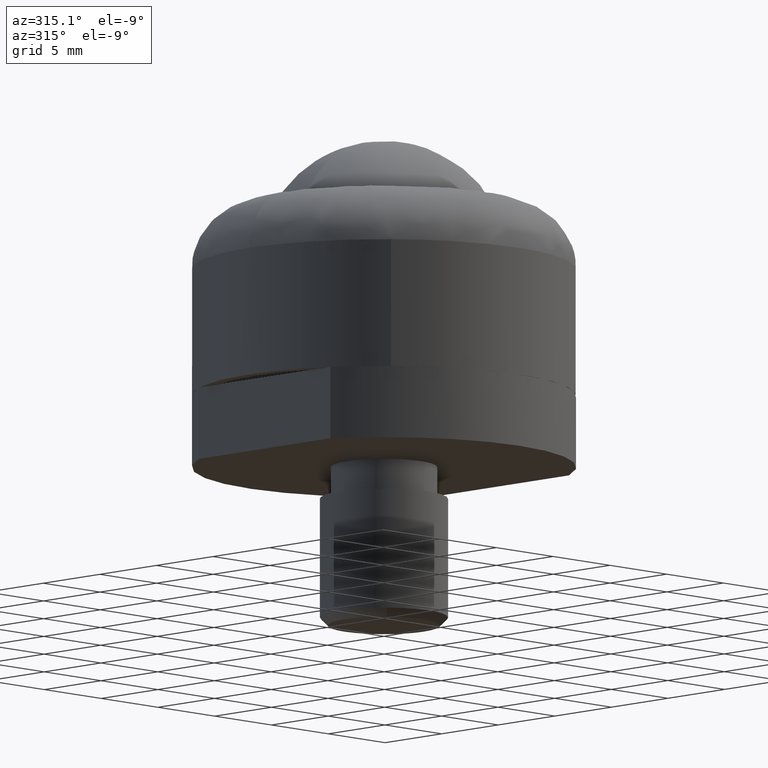
[diagram: clean part render]
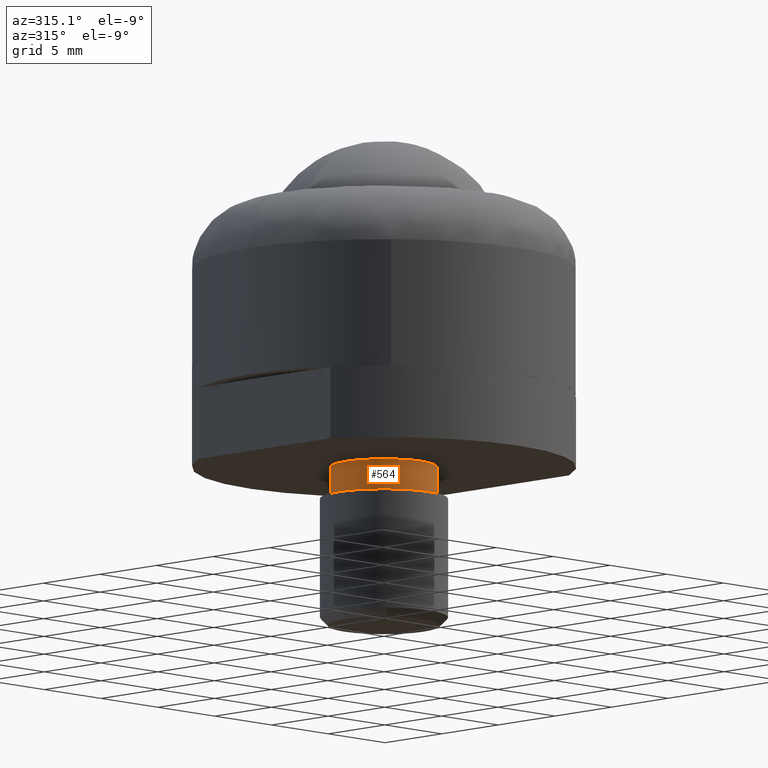
[diagram: same view with one face highlighted and labeled with its STEP entity id]
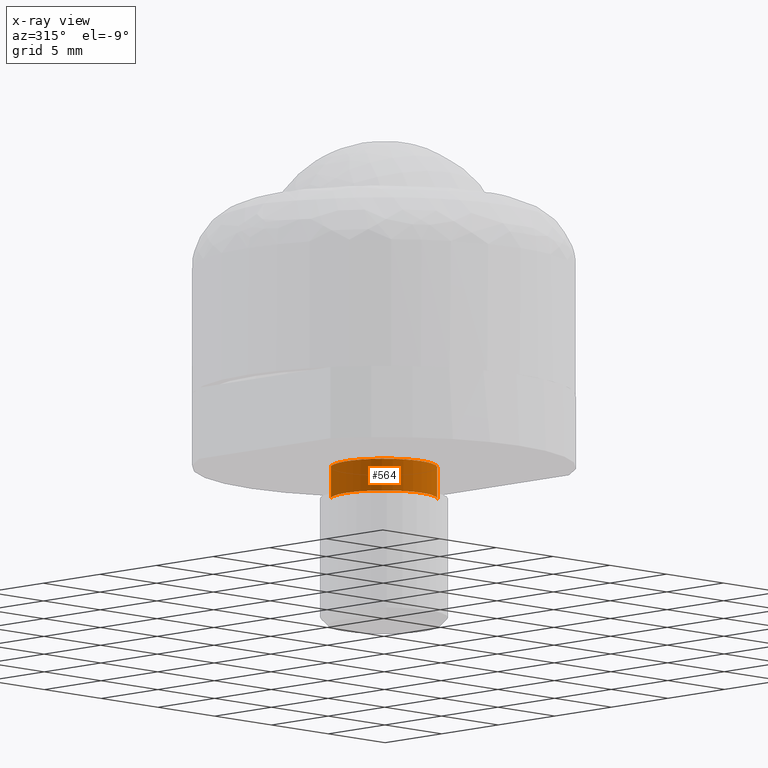
[diagram: x-ray of the same camera — body ghosted, the highlighted face saturated]
A machine part, auxiliary view. The second image highlights one B-rep face of the part: STEP entity #564.
The next image is the same camera in x-ray: the body ghosted, the highlighted face saturated — about 0% of this face is hidden behind the body in this view.
In plain terms, the highlighted face is a freeform B-spline surface patch.
Its self-contained STEP definition (entity closure, byte-faithful):
#427=CARTESIAN_POINT('',(2.410781670425908,-2.287746325560419,-6.499999999998471));
#428=VERTEX_POINT('',#427);
#438=CARTESIAN_POINT('',(-0.000000444371063,-3.323499999999971,-6.500000000000001));
#439=VERTEX_POINT('',#438);
#440=CARTESIAN_POINT('',(2.410781670425908,-2.287746325560419,-6.499999999998471));
#441=CARTESIAN_POINT('',(2.236747822863781,-2.471202287513341,-6.499999999998578));
#442=CARTESIAN_POINT('',(1.835703959719018,-2.807194791580273,-6.499999999998837));
#443=CARTESIAN_POINT('',(1.253284373566306,-3.097839056480408,-6.499999999999218));
#444=CARTESIAN_POINT('',(0.632151725663045,-3.279981970281719,-6.499999999999569));
#445=CARTESIAN_POINT('',(0.252876188508932,-3.323556723340191,-6.499999999999849));
#446=CARTESIAN_POINT('',(-0.000000444371063,-3.323499999999971,-6.500000000000001));
#447=B_SPLINE_CURVE_WITH_KNOTS('',3,(#440,#441,#442,#443,#444,#445,#446),.UNSPECIFIED.,.F.,.U.,(4,1,1,1,4),(0.000000013518100,0.758615531338154,1.559373318280434,1.938682817311323,2.697298335131452),.UNSPECIFIED.);
#448=EDGE_CURVE('',#428,#439,#447,.T.);
#450=CARTESIAN_POINT('',(-3.323500000000000,0.0,-6.500000000000000));
#451=VERTEX_POINT('',#450);
#452=CARTESIAN_POINT('',(-0.000000444371063,-3.323499999999971,-6.500000000000001));
#453=CARTESIAN_POINT('',(-0.217524817259646,-3.323526846979648,-6.499999999999997));
#454=CARTESIAN_POINT('',(-0.638962466103340,-3.281973551492250,-6.500000000000006));
#455=CARTESIAN_POINT('',(-1.280347555273077,-3.091746555243844,-6.500000000000004));
#456=CARTESIAN_POINT('',(-1.786989998562304,-2.820918069143109,-6.499999999999976));
#457=CARTESIAN_POINT('',(-2.293914138647339,-2.430310684883212,-6.500000000000031));
#458=CARTESIAN_POINT('',(-2.689464049476017,-1.993911491934423,-6.499999999999989));
#459=CARTESIAN_POINT('',(-3.005465074475777,-1.451560406169636,-6.500000000000004));
#460=CARTESIAN_POINT('',(-3.250824552546068,-0.815635751977172,-6.500000000000008));
#461=CARTESIAN_POINT('',(-3.323645462678310,-0.326304734888937,-6.500000000000003));
#462=CARTESIAN_POINT('',(-3.323500000000000,0.0,-6.500000000000000));
#463=B_SPLINE_CURVE_WITH_KNOTS('',3,(#452,#453,#454,#455,#456,#457,#458,#459,#460,#461,#462),.UNSPECIFIED.,.F.,.U.,(4,1,1,1,1,1,1,1,4),(0.000000049603488,0.652571498934674,1.264357604121244,1.998512361997744,2.365589485457557,3.181275499607144,3.752287232545000,4.241717981450707,5.220574098330893),.UNSPECIFIED.);
#464=EDGE_CURVE('',#439,#451,#463,.T.);
#466=CARTESIAN_POINT('',(-2.410781670425915,2.287746325560427,-6.499999999998471));
#467=VERTEX_POINT('',#466);
#468=CARTESIAN_POINT('',(-3.323500000000000,0.0,-6.500000000000000));
#469=CARTESIAN_POINT('',(-3.323550875524773,0.249702961878162,-6.499999999999830));
#470=CARTESIAN_POINT('',(-3.269923930892705,0.722790641086309,-6.499999999999537));
#471=CARTESIAN_POINT('',(-3.058285148860095,1.348408919676339,-6.499999999999083));
#472=CARTESIAN_POINT('',(-2.768505976759077,1.866281981795844,-6.499999999998767));
#473=CARTESIAN_POINT('',(-2.537440119190449,2.154294560028288,-6.499999999998554));
#474=CARTESIAN_POINT('',(-2.410781670425915,2.287746325560427,-6.499999999998471));
#475=B_SPLINE_CURVE_WITH_KNOTS('',3,(#468,#469,#470,#471,#472,#473,#474),.UNSPECIFIED.,.F.,.U.,(4,1,1,1,4),(0.000000013205521,0.749099478922581,1.419339678017338,1.971310026869778,2.523276480037192),.UNSPECIFIED.);
#476=EDGE_CURVE('',#451,#467,#475,.T.);
#491=CARTESIAN_POINT('',(2.410781722058978,-2.287746432317850,-4.450000000000000));
#492=CARTESIAN_POINT('',(0.123035289741128,-4.698528154376828,-4.450000000000000));
#493=CARTESIAN_POINT('',(-2.287746432317850,-2.410781722058978,-4.450000000000000));
#494=CARTESIAN_POINT('',(-4.698528154376828,-0.123035289741128,-4.450000000000000));
#495=CARTESIAN_POINT('',(-2.410781722058978,2.287746432317850,-4.450000000000000));
#496=CARTESIAN_POINT('',(2.410781722058978,-2.287746432317850,-6.551250000000001));
#497=CARTESIAN_POINT('',(0.123035289741128,-4.698528154376828,-6.551250000000001));
#498=CARTESIAN_POINT('',(-2.287746432317850,-2.410781722058978,-6.551250000000001));
#499=CARTESIAN_POINT('',(-4.698528154376828,-0.123035289741128,-6.551250000000001));
#500=CARTESIAN_POINT('',(-2.410781722058978,2.287746432317850,-6.551250000000001));
#508=(BOUNDED_SURFACE()B_SPLINE_SURFACE(2,1,((#491,#496),(#492,#497),(#493,#498),(#494,#499),(#495,#500)),.UNSPECIFIED.,.F.,.F.,.U.)B_SPLINE_SURFACE_WITH_KNOTS((3,2,3),(2,2),(0.0,5.506555098187104,11.013110196374210),(0.0,2.101250000000002),.UNSPECIFIED.)GEOMETRIC_REPRESENTATION_ITEM()RATIONAL_B_SPLINE_SURFACE(((1.0,1.0),(0.707106781186548,0.707106781186548),(1.0,1.0),(0.707106781186548,0.707106781186548),(1.0,1.0)))REPRESENTATION_ITEM('')SURFACE());
#509=ORIENTED_EDGE('',*,*,#448,.F.);
#510=CARTESIAN_POINT('',(2.410781670074012,-2.287746325930898,-4.500000000000000));
#511=VERTEX_POINT('',#510);
#512=CARTESIAN_POINT('',(2.410781670074012,-2.287746325930898,-4.500000000000000));
#513=CARTESIAN_POINT('',(2.410781670425908,-2.287746325560419,-6.499999999998471));
#514=QUASI_UNIFORM_CURVE('',1,(#512,#513),.UNSPECIFIED.,.F.,.U.);
#515=EDGE_CURVE('',#511,#428,#514,.T.);
#516=ORIENTED_EDGE('',*,*,#515,.F.);
#517=CARTESIAN_POINT('',(-0.000000444371014,-3.323499999999476,-4.500000000000000));
#518=VERTEX_POINT('',#517);
#519=CARTESIAN_POINT('',(2.410781670074012,-2.287746325930898,-4.500000000000000));
#520=CARTESIAN_POINT('',(2.236748829654134,-2.471203440939727,-4.500000000000012));
#521=CARTESIAN_POINT('',(1.835702522624590,-2.807193671617304,-4.499999999999977));
#522=CARTESIAN_POINT('',(1.253284877570124,-3.097839460523918,-4.500000000000027));
#523=CARTESIAN_POINT('',(0.632151529946505,-3.279981811991341,-4.499999999999968));
#524=CARTESIAN_POINT('',(0.252875813123256,-3.323556713718630,-4.500000000000013));
#525=CARTESIAN_POINT('',(-0.000000444371014,-3.323499999999476,-4.500000000000000));
#526=B_SPLINE_CURVE_WITH_KNOTS('',3,(#519,#520,#521,#522,#523,#524,#525),.UNSPECIFIED.,.F.,.U.,(4,1,1,1,4),(0.000000013517992,0.758615531194267,1.559373317984783,1.938682816943773,2.697298334620137),.UNSPECIFIED.);
#527=EDGE_CURVE('',#511,#518,#526,.T.);
#528=ORIENTED_EDGE('',*,*,#527,.T.);
#529=CARTESIAN_POINT('',(-3.323499999999505,0.0,-4.500000000000000));
#530=VERTEX_POINT('',#529);
#531=CARTESIAN_POINT('',(-0.000000444371014,-3.323499999999476,-4.500000000000000));
#532=CARTESIAN_POINT('',(-0.326293959757682,-3.323628909932427,-4.499999999999997));
#533=CARTESIAN_POINT('',(-0.910819565287120,-3.236717821096580,-4.500000000000010));
#534=CARTESIAN_POINT('',(-1.638551763799369,-2.919417497351698,-4.499999999999992));
#535=CARTESIAN_POINT('',(-2.149766001498949,-2.554616232113676,-4.499999999999983));
#536=CARTESIAN_POINT('',(-2.583554706172869,-2.120861567393316,-4.500000000000017));
#537=CARTESIAN_POINT('',(-2.939521610413360,-1.602047065121896,-4.500000000000008));
#538=CARTESIAN_POINT('',(-3.242724836651862,-0.870009787120970,-4.500000000000004));
#539=CARTESIAN_POINT('',(-3.323656034349454,-0.326304125713182,-4.499999999999992));
#540=CARTESIAN_POINT('',(-3.323499999999505,0.0,-4.500000000000000));
#541=B_SPLINE_CURVE_WITH_KNOTS('',3,(#531,#532,#533,#534,#535,#536,#537,#538,#539,#540),.UNSPECIFIED.,.F.,.U.,(4,1,1,1,1,1,1,4),(0.000000049603869,0.978857274861380,1.753789829603237,2.365589485457373,2.854984398221149,3.589143188970047,4.241717981450110,5.220574098330142),.UNSPECIFIED.);
#542=EDGE_CURVE('',#518,#530,#541,.T.);
#543=ORIENTED_EDGE('',*,*,#542,.T.);
#544=CARTESIAN_POINT('',(-2.410781670074005,2.287746325930890,-4.500000000000000));
#545=VERTEX_POINT('',#544);
#546=CARTESIAN_POINT('',(-3.323499999999505,0.0,-4.500000000000000));
#547=CARTESIAN_POINT('',(-3.323671966069891,0.341711235545098,-4.500000000000001));
#548=CARTESIAN_POINT('',(-3.231471246213849,0.933002116463309,-4.500000000000003));
#549=CARTESIAN_POINT('',(-2.885395622567465,1.705463310066538,-4.499999999999997));
#550=CARTESIAN_POINT('',(-2.582699809745703,2.106652325114511,-4.500000000000001));
#551=CARTESIAN_POINT('',(-2.410781670074005,2.287746325930890,-4.500000000000000));
#552=B_SPLINE_CURVE_WITH_KNOTS('',3,(#546,#547,#548,#549,#550,#551),.UNSPECIFIED.,.F.,.U.,(4,1,1,4),(0.000000013205879,1.025086896380361,1.774177014686013,2.523276480547876),.UNSPECIFIED.);
#553=EDGE_CURVE('',#530,#545,#552,.T.);
#554=ORIENTED_EDGE('',*,*,#553,.T.);
#555=CARTESIAN_POINT('',(-2.410781670074005,2.287746325930890,-4.500000000000000));
#556=CARTESIAN_POINT('',(-2.410781670425915,2.287746325560427,-6.499999999998471));
#557=QUASI_UNIFORM_CURVE('',1,(#555,#556),.UNSPECIFIED.,.F.,.U.);
#558=EDGE_CURVE('',#545,#467,#557,.T.);
#559=ORIENTED_EDGE('',*,*,#558,.T.);
#560=ORIENTED_EDGE('',*,*,#476,.F.);
#561=ORIENTED_EDGE('',*,*,#464,.F.);
#562=EDGE_LOOP('',(#509,#516,#528,#543,#554,#559,#560,#561));
#563=FACE_OUTER_BOUND('',#562,.T.);
#564=ADVANCED_FACE('',(#563),#508,.T.);